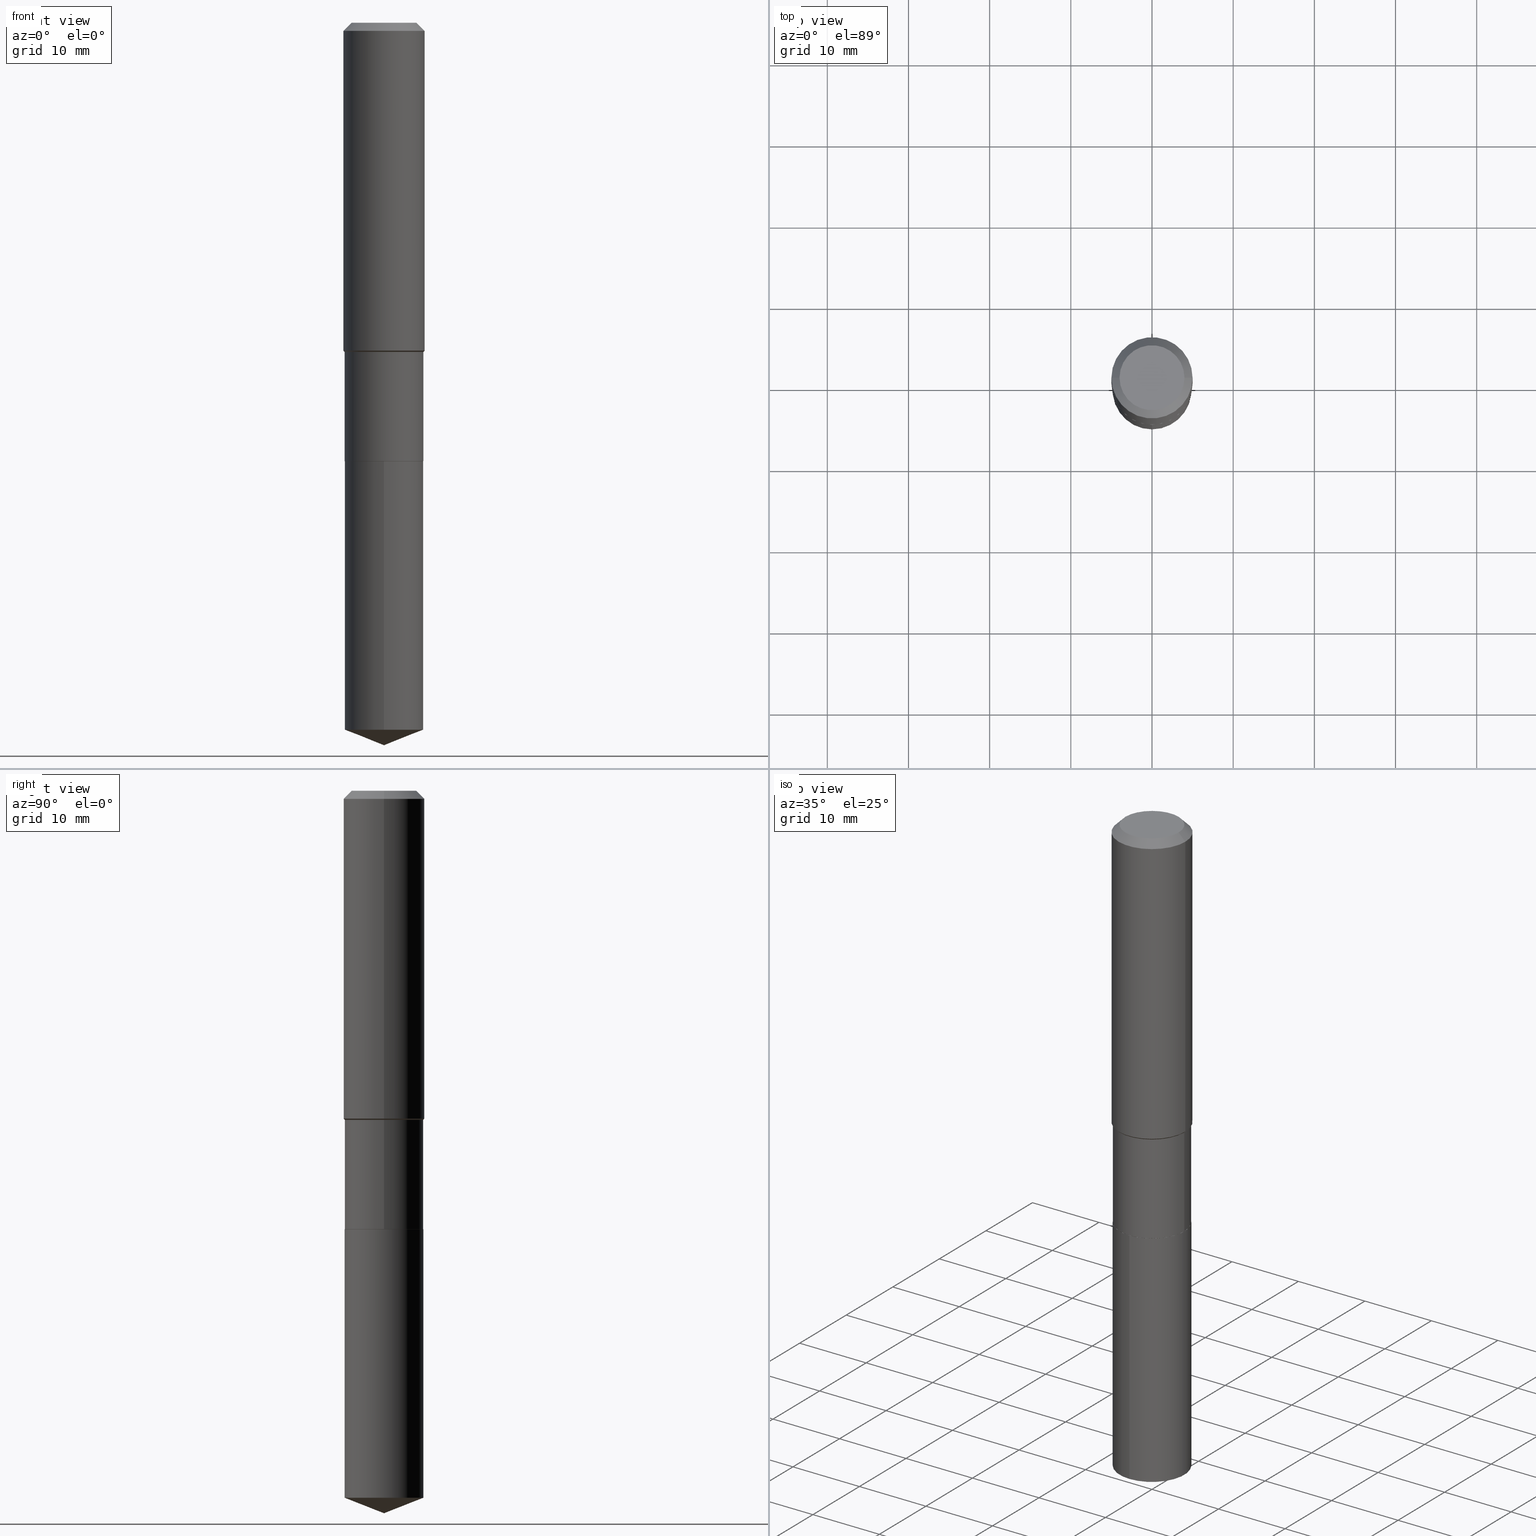
[diagram: canonical four-view strip — front | top / right | iso, engineering-drawing reading convention]
A machine part, canonical four-view strip (front | top / right | iso — engineering-drawing reading convention). The complete STEP part file that produces these views, byte-faithful:
ISO-10303-21;
HEADER;
FILE_DESCRIPTION (( 'STEP AP203' ),
    '1' );
FILE_NAME ('66467.STEP',
    '2024-04-24T23:15:52',
    ( '' ),
    ( '' ),
    'SwSTEP 2.0',
    'SolidWorks 2023',
    '' );
FILE_SCHEMA (( 'CONFIG_CONTROL_DESIGN' ));
ENDSEC;

DATA;
#1 = AXIS2_PLACEMENT_3D ( 'NONE', #81, #314, #273 ) ;
#2 = ORIENTED_EDGE ( 'NONE', *, *, #295, .F. ) ;
#3 = FACE_OUTER_BOUND ( 'NONE', #332, .T. ) ;
#4 = EDGE_LOOP ( 'NONE', ( #296, #416, #15, #450 ) ) ;
#5 = CARTESIAN_POINT ( 'NONE',  ( 3.903457308432714385E-29, -5.573102513061428085E-15, -1.596199999999999841 ) ) ;
#6 = DIRECTION ( 'NONE',  ( 1.000000000000000000, -6.982962677686271444E-15, 0.000000000000000000 ) ) ;
#7 = EDGE_CURVE ( 'NONE', #63, #50, #23, .T. ) ;
#8 = AXIS2_PLACEMENT_3D ( 'NONE', #108, #457, #22 ) ;
#9 = CARTESIAN_POINT ( 'NONE',  ( -1.333396723304140679E-15, -0.1909500000000074194, -2.125899999999999235 ) ) ;
#10 = COORDINATED_UNIVERSAL_TIME_OFFSET ( 5, 0, .BEHIND. ) ;
#11 = CC_DESIGN_PERSON_AND_ORGANIZATION_ASSIGNMENT ( #124, #34, ( #434 ) ) ;
#12 = CARTESIAN_POINT ( 'NONE',  ( 8.568579986907819706E-29, -1.223394203829628348E-14, -3.503899999999999793 ) ) ;
#13 = AXIS2_PLACEMENT_3D ( 'NONE', #233, #121, #386 ) ;
#14 = AXIS2_PLACEMENT_3D ( 'NONE', #164, #191, #358 ) ;
#15 = ORIENTED_EDGE ( 'NONE', *, *, #7, .T. ) ;
#16 = DIRECTION ( 'NONE',  ( 1.000000000000000000, -6.982962677686266711E-15, 0.000000000000000000 ) ) ;
#17 = APPROVAL_ROLE ( '' ) ;
#18 = CARTESIAN_POINT ( 'NONE',  ( 3.903457308432714385E-29, -5.573102513061428085E-15, -1.596199999999999841 ) ) ;
#19 = DIRECTION ( 'NONE',  ( -2.445468806185136597E-29, 3.491481338843145583E-15, 1.000000000000000000 ) ) ;
#20 = ADVANCED_FACE ( 'NONE', ( #3 ), #446, .T. ) ;
#21 = EDGE_CURVE ( 'NONE', #269, #213, #487, .T. ) ;
#22 = DIRECTION ( 'NONE',  ( 1.000000000000000000, -6.982962677686265922E-15, 0.000000000000000000 ) ) ;
#23 = CIRCLE ( 'NONE', #95, 0.1968500000000000250 ) ;
#24 = CIRCLE ( 'NONE', #302, 0.1909499999999999531 ) ;
#25 = CC_DESIGN_APPROVAL ( #376, ( #287 ) ) ;
#26 = CYLINDRICAL_SURFACE ( 'NONE', #51, 0.1909499999999999809 ) ;
#27 = APPROVAL_ROLE ( '' ) ;
#28 = DIRECTION ( 'NONE',  ( -6.982962677686265922E-15, -1.000000000000000000, 2.861322852751257324E-15 ) ) ;
#29 = ORIENTED_EDGE ( 'NONE', *, *, #7, .F. ) ;
#30 = ADVANCED_FACE ( 'NONE', ( #240 ), #389, .T. ) ;
#31 = CLOSED_SHELL ( 'NONE', ( #168, #377, #306, #486, #320 ) ) ;
#32 = CIRCLE ( 'NONE', #462, 0.1909500000000000086 ) ;
#33 = LOCAL_TIME ( 19, 15, 52.00000000000000000, #387 ) ;
#34 = PERSON_AND_ORGANIZATION_ROLE ( 'creator' ) ;
#35 = CARTESIAN_POINT ( 'NONE',  ( 1.356781353933995380E-15, 0.1909499999999925979, -2.125900000000000567 ) ) ;
#36 = VERTEX_POINT ( 'NONE', #163 ) ;
#37 = EDGE_LOOP ( 'NONE', ( #219, #405 ) ) ;
#38 = ORIENTED_EDGE ( 'NONE', *, *, #123, .T. ) ;
#39 = CIRCLE ( 'NONE', #215, 0.1909500000000000086 ) ;
#40 = DIRECTION ( 'NONE',  ( 1.000000000000000000, -6.982962677686265922E-15, 4.876223630392693006E-29 ) ) ;
#41 = AXIS2_PLACEMENT_3D ( 'NONE', #485, #155, #310 ) ;
#42 = CARTESIAN_POINT ( 'NONE',  ( 5.197599400665889285E-29, -7.420794437577220826E-15, -2.125399999999999956 ) ) ;
#43 = ORIENTED_EDGE ( 'NONE', *, *, #205, .T. ) ;
#44 = ORIENTED_EDGE ( 'NONE', *, *, #71, .T. ) ;
#45 = EDGE_CURVE ( 'NONE', #465, #110, #430, .T. ) ;
#46 = CARTESIAN_POINT ( 'NONE',  ( 5.198822135068982087E-29, -7.422540178246643119E-15, -2.125899999999999679 ) ) ;
#47 = EDGE_LOOP ( 'NONE', ( #441, #444, #278, #288 ) ) ;
#48 = ADVANCED_FACE ( 'NONE', ( #247 ), #395, .T. ) ;
#49 = PERSON_AND_ORGANIZATION ( #82, #338 ) ;
#50 = VERTEX_POINT ( 'NONE', #365 ) ;
#51 = AXIS2_PLACEMENT_3D ( 'NONE', #299, #343, #448 ) ;
#52 =( GEOMETRIC_REPRESENTATION_CONTEXT ( 3 ) GLOBAL_UNCERTAINTY_ASSIGNED_CONTEXT ( ( #195 ) ) GLOBAL_UNIT_ASSIGNED_CONTEXT ( ( #194, #85, #158 ) ) REPRESENTATION_CONTEXT ( 'NONE', 'WORKASPACE' ) );
#53 = DIRECTION ( 'NONE',  ( -2.445468806185136597E-29, 3.491481338843145583E-15, 1.000000000000000000 ) ) ;
#54 = CARTESIAN_POINT ( 'NONE',  ( 0.1968500000000000250, -1.487948651171581601E-15, -0.03937000000000029365 ) ) ;
#55 = ORIENTED_EDGE ( 'NONE', *, *, #161, .T. ) ;
#56 = EDGE_LOOP ( 'NONE', ( #86, #403, #222, #2 ) ) ;
#57 = EDGE_CURVE ( 'NONE', #103, #63, #254, .T. ) ;
#58 = CARTESIAN_POINT ( 'NONE',  ( 0.1968500000000000250, -1.512055823412797189E-15, -0.03937000000000029365 ) ) ;
#59 = CALENDAR_DATE ( 2024, 24, 4 ) ;
#60 = VERTEX_POINT ( 'NONE', #173 ) ;
#61 = CIRCLE ( 'NONE', #116, 0.1909499999999999531 ) ;
#62 = AXIS2_PLACEMENT_3D ( 'NONE', #315, #120, #272 ) ;
#63 = VERTEX_POINT ( 'NONE', #58 ) ;
#64 = CARTESIAN_POINT ( 'NONE',  ( 0.1968500000000001082, -1.374596203102542397E-15, 9.598753983154305062E-30 ) ) ;
#65 = ADVANCED_FACE ( 'NONE', ( #331 ), #325, .T. ) ;
#66 = ORIENTED_EDGE ( 'NONE', *, *, #57, .T. ) ;
#67 = DIRECTION ( 'NONE',  ( -2.445600057802036841E-29, 3.491293379057366203E-15, 1.000000000000000000 ) ) ;
#68 = LINE ( 'NONE', #340, #419 ) ;
#69 = VECTOR ( 'NONE', #249, 39.37007874015748143 ) ;
#70 = ORIENTED_EDGE ( 'NONE', *, *, #301, .T. ) ;
#71 = EDGE_CURVE ( 'NONE', #119, #218, #263, .T. ) ;
#72 = SHAPE_DEFINITION_REPRESENTATION ( #298, #210 ) ;
#73 = DIRECTION ( 'NONE',  ( -0.7071067811866199593, 7.493145998870616062E-15, 0.7071067811864750752 ) ) ;
#74 = DATE_AND_TIME ( #184, #97 ) ;
#75 = EDGE_LOOP ( 'NONE', ( #426, #415, #99 ) ) ;
#76 = DIRECTION ( 'NONE',  ( -2.438088387897960049E-29, 3.491481338843145188E-15, 1.000000000000000000 ) ) ;
#77 = DIRECTION ( 'NONE',  ( 0.7071067811865450192, -7.319954787623246579E-15, -0.7071067811865500152 ) ) ;
#78 = AXIS2_PLACEMENT_3D ( 'NONE', #388, #275, #354 ) ;
#79 = ADVANCED_FACE ( 'NONE', ( #289 ), #443, .T. ) ;
#80 = DIRECTION ( 'NONE',  ( -2.445468806185136597E-29, 3.491481338843145583E-15, 1.000000000000000000 ) ) ;
#81 = CARTESIAN_POINT ( 'NONE',  ( 5.197599400665889285E-29, -7.420794437577220826E-15, -2.125399999999999956 ) ) ;
#82 = PERSON ( 'UNSPECIFIED', 'UNSPECIFIED', 'UNSPECIFIED', ('UNSPECIFIED'), ('UNSPECIFIED'), ('UNSPECIFIED') ) ;
#83 = DIRECTION ( 'NONE',  ( -2.445468806185136597E-29, 3.491481338843145583E-15, 1.000000000000000000 ) ) ;
#84 = FACE_OUTER_BOUND ( 'NONE', #156, .T. ) ;
#85 =( NAMED_UNIT ( * ) PLANE_ANGLE_UNIT ( ) SI_UNIT ( $, .RADIAN. ) );
#86 = ORIENTED_EDGE ( 'NONE', *, *, #246, .T. ) ;
#87 = ORIENTED_EDGE ( 'NONE', *, *, #161, .F. ) ;
#88 = CIRCLE ( 'NONE', #216, 0.1574800000000000089 ) ;
#89 = CARTESIAN_POINT ( 'NONE',  ( 8.384907813045136021E-29, -1.197093712366741292E-14, -3.428682794681327639 ) ) ;
#90 = PERSON_AND_ORGANIZATION ( #82, #338 ) ;
#91 = CC_DESIGN_PERSON_AND_ORGANIZATION_ASSIGNMENT ( #49, #204, ( #287 ) ) ;
#92 = DIRECTION ( 'NONE',  ( -0.7071067811865434649, 7.493145998870339961E-15, 0.7071067811865516806 ) ) ;
#93 = COORDINATED_UNIVERSAL_TIME_OFFSET ( 5, 0, .BEHIND. ) ;
#94 = ORIENTED_EDGE ( 'NONE', *, *, #238, .F. ) ;
#95 = AXIS2_PLACEMENT_3D ( 'NONE', #271, #243, #281 ) ;
#96 = LINE ( 'NONE', #172, #372 ) ;
#97 = LOCAL_TIME ( 19, 15, 52.00000000000000000, #303 ) ;
#98 = FACE_OUTER_BOUND ( 'NONE', #4, .T. ) ;
#99 = ORIENTED_EDGE ( 'NONE', *, *, #234, .F. ) ;
#100 = DIRECTION ( 'NONE',  ( -6.982962677686266711E-15, -1.000000000000000000, 3.498627837349992784E-15 ) ) ;
#101 = EDGE_LOOP ( 'NONE', ( #70, #193, #29, #384 ) ) ;
#102 = CIRCLE ( 'NONE', #353, 0.1904500000000000082 ) ;
#103 = VERTEX_POINT ( 'NONE', #398 ) ;
#104 = LINE ( 'NONE', #407, #383 ) ;
#105 = CARTESIAN_POINT ( 'NONE',  ( -9.427742298522567634E-47, 1.346031739168368355E-32, 3.855188123715870730E-18 ) ) ;
#106 = DIRECTION ( 'NONE',  ( 1.000000000000000000, -6.982962677686265922E-15, 4.876176775795935793E-29 ) ) ;
#107 = CIRCLE ( 'NONE', #8, 0.1968500000000000250 ) ;
#108 = CARTESIAN_POINT ( 'NONE',  ( 9.627810689950954155E-31, -1.374596203102556547E-16, -0.03937000000000029365 ) ) ;
#109 = ORIENTED_EDGE ( 'NONE', *, *, #217, .T. ) ;
#110 = VERTEX_POINT ( 'NONE', #438 ) ;
#111 = DIRECTION ( 'NONE',  ( -6.982962677686265922E-15, -1.000000000000000000, 2.861322852751257324E-15 ) ) ;
#112 = DIRECTION ( 'NONE',  ( -2.445468806185136597E-29, 3.491481338843145583E-15, 1.000000000000000000 ) ) ;
#113 = APPROVAL ( #420, 'UNSPECIFIED' ) ;
#114 = DIRECTION ( 'NONE',  ( -2.445468806185136597E-29, 3.491481338843145583E-15, 1.000000000000000000 ) ) ;
#115 = COORDINATED_UNIVERSAL_TIME_OFFSET ( 5, 0, .BEHIND. ) ;
#116 = AXIS2_PLACEMENT_3D ( 'NONE', #480, #151, #454 ) ;
#117 = CC_DESIGN_APPROVAL ( #113, ( #434 ) ) ;
#118 = CC_DESIGN_DATE_AND_TIME_ASSIGNMENT ( #255, #212, ( #434 ) ) ;
#119 = VERTEX_POINT ( 'NONE', #126 ) ;
#120 = DIRECTION ( 'NONE',  ( 2.438088387897960049E-29, -3.491481338843145188E-15, -1.000000000000000000 ) ) ;
#121 = DIRECTION ( 'NONE',  ( -2.445600057802036841E-29, 3.491293379057366203E-15, 1.000000000000000000 ) ) ;
#122 = MECHANICAL_CONTEXT ( 'NONE', #328, 'mechanical' ) ;
#123 = EDGE_CURVE ( 'NONE', #440, #269, #102, .T. ) ;
#124 = PERSON_AND_ORGANIZATION ( #82, #338 ) ;
#125 = ORIENTED_EDGE ( 'NONE', *, *, #214, .F. ) ;
#126 = CARTESIAN_POINT ( 'NONE',  ( -1.333396723304108730E-15, -0.1909500000000120268, -3.428682794681327195 ) ) ;
#127 = ORIENTED_EDGE ( 'NONE', *, *, #21, .F. ) ;
#128 = DIRECTION ( 'NONE',  ( 2.445468806185136597E-29, -3.491481338843145583E-15, -1.000000000000000000 ) ) ;
#129 = DIRECTION ( 'NONE',  ( 2.445468806185136597E-29, -3.491481338843145583E-15, -1.000000000000000000 ) ) ;
#130 = AXIS2_PLACEMENT_3D ( 'NONE', #344, #140, #334 ) ;
#131 = DIRECTION ( 'NONE',  ( -2.445468806185136597E-29, 3.491481338843145583E-15, 1.000000000000000000 ) ) ;
#132 = ORIENTED_EDGE ( 'NONE', *, *, #418, .T. ) ;
#133 = DIRECTION ( 'NONE',  ( 1.000000000000000000, -6.982962677686266711E-15, 4.876176775795935232E-29 ) ) ;
#134 = EDGE_LOOP ( 'NONE', ( #455, #352, #132, #136 ) ) ;
#135 = EDGE_CURVE ( 'NONE', #110, #50, #381, .T. ) ;
#136 = ORIENTED_EDGE ( 'NONE', *, *, #205, .F. ) ;
#137 = ORIENTED_EDGE ( 'NONE', *, *, #295, .T. ) ;
#138 = ADVANCED_FACE ( 'NONE', ( #297 ), #26, .T. ) ;
#139 = VERTEX_POINT ( 'NONE', #413 ) ;
#140 = DIRECTION ( 'NONE',  ( -2.445600057802036841E-29, 3.491293379057366203E-15, 1.000000000000000000 ) ) ;
#141 = CIRCLE ( 'NONE', #476, 0.1909500000000000086 ) ;
#142 = ORIENTED_EDGE ( 'NONE', *, *, #410, .T. ) ;
#143 = CARTESIAN_POINT ( 'NONE',  ( -0.1909499999999999531, -5.140167121385413090E-15, -1.596199999999999841 ) ) ;
#144 = ADVANCED_FACE ( 'NONE', ( #186 ), #230, .T. ) ;
#145 = MANIFOLD_SOLID_BREP ( 'Body-Move/Copy2[1]', #31 ) ;
#146 = DIRECTION ( 'NONE',  ( -2.445468806185136877E-29, 3.491481338843145188E-15, 1.000000000000000000 ) ) ;
#147 = APPROVAL_STATUS ( 'not_yet_approved' ) ;
#148 = PLANE ( 'NONE',  #400 ) ;
#149 = VECTOR ( 'NONE', #371, 39.37007874015748143 ) ;
#150 = ORIENTED_EDGE ( 'NONE', *, *, #333, .F. ) ;
#151 = DIRECTION ( 'NONE',  ( -2.445468806185136597E-29, 3.491481338843145583E-15, 1.000000000000000000 ) ) ;
#152 = MANIFOLD_SOLID_BREP ( 'Body-Move/Copy2[2]', #382 ) ;
#153 = DIRECTION ( 'NONE',  ( 1.000000000000000000, -6.982962677686265133E-15, 0.000000000000000000 ) ) ;
#154 = LENGTH_MEASURE_WITH_UNIT ( LENGTH_MEASURE( 0.02539999999999999897 ), #464 );
#155 = DIRECTION ( 'NONE',  ( 2.445600057802036561E-29, -3.491293379057366203E-15, -1.000000000000000000 ) ) ;
#156 = EDGE_LOOP ( 'NONE', ( #150, #109, #44, #94 ) ) ;
#157 = ORIENTED_EDGE ( 'NONE', *, *, #21, .T. ) ;
#158 =( NAMED_UNIT ( * ) SI_UNIT ( $, .STERADIAN. ) SOLID_ANGLE_UNIT ( ) );
#159 = VERTEX_POINT ( 'NONE', #185 ) ;
#160 = DIRECTION ( 'NONE',  ( 1.000000000000000000, -6.982962677686271444E-15, 0.000000000000000000 ) ) ;
#161 = EDGE_CURVE ( 'NONE', #440, #36, #104, .T. ) ;
#162 = APPLICATION_PROTOCOL_DEFINITION ( 'international standard', 'config_control_design', 1994, #328 ) ;
#163 = CARTESIAN_POINT ( 'NONE',  ( -0.1909500000000000086, -5.140167121385412301E-15, -2.125399999999999956 ) ) ;
#164 = CARTESIAN_POINT ( 'NONE',  ( 0.000000000000000000, 0.000000000000000000, 0.000000000000000000 ) ) ;
#165 = AXIS2_PLACEMENT_3D ( 'NONE', #89, #309, #229 ) ;
#166 = AXIS2_PLACEMENT_3D ( 'NONE', #176, #19, #439 ) ;
#167 = CALENDAR_DATE ( 2024, 24, 4 ) ;
#168 = ADVANCED_FACE ( 'NONE', ( #220 ), #221, .T. ) ;
#169 = SECURITY_CLASSIFICATION_LEVEL ( 'unclassified' ) ;
#170 = VERTEX_POINT ( 'NONE', #370 ) ;
#171 = PRODUCT ( '66467', '66467', '', ( #122 ) ) ;
#172 = CARTESIAN_POINT ( 'NONE',  ( 0.1909499999999999531, -6.906499236365620631E-15, -1.596199999999999841 ) ) ;
#173 = CARTESIAN_POINT ( 'NONE',  ( 1.356781353933995577E-15, 0.1909499999999880737, -3.428682794681328083 ) ) ;
#174 = PERSON_AND_ORGANIZATION ( #82, #338 ) ;
#175 = AXIS2_PLACEMENT_3D ( 'NONE', #431, #128, #323 ) ;
#176 = CARTESIAN_POINT ( 'NONE',  ( 5.198822135068982087E-29, -7.422540178246643119E-15, -2.125899999999999679 ) ) ;
#177 = EDGE_LOOP ( 'NONE', ( #355, #435 ) ) ;
#178 = EDGE_LOOP ( 'NONE', ( #87, #38, #157, #437 ) ) ;
#179 = CARTESIAN_POINT ( 'NONE',  ( 8.569142936021653677E-29, -1.223314287087910590E-14, -3.503899999999999793 ) ) ;
#180 = CIRCLE ( 'NONE', #1, 0.1909500000000000086 ) ;
#181 = CARTESIAN_POINT ( 'NONE',  ( 0.1909499999999999809, -1.333396723304192546E-15, 9.311059553382337160E-30 ) ) ;
#182 = SECURITY_CLASSIFICATION ( '', '', #169 ) ;
#183 = CARTESIAN_POINT ( 'NONE',  ( -0.1904500000000000082, -6.066662310817420267E-15, -2.125899999999999679 ) ) ;
#184 = CALENDAR_DATE ( 2024, 24, 4 ) ;
#185 = CARTESIAN_POINT ( 'NONE',  ( 0.1574800000000000089, -1.284169937930321189E-15, 3.855188123724205385E-18 ) ) ;
#186 = FACE_OUTER_BOUND ( 'NONE', #490, .T. ) ;
#187 = AXIS2_PLACEMENT_3D ( 'NONE', #369, #292, #445 ) ;
#188 = CC_DESIGN_SECURITY_CLASSIFICATION ( #182, ( #287 ) ) ;
#189 = DIRECTION ( 'NONE',  ( -2.445468806185136597E-29, 3.491481338843145583E-15, 1.000000000000000000 ) ) ;
#190 = DIRECTION ( 'NONE',  ( -2.445600057802036841E-29, 3.491293379057366203E-15, 1.000000000000000000 ) ) ;
#191 = DIRECTION ( 'NONE',  ( 0.000000000000000000, 0.000000000000000000, 1.000000000000000000 ) ) ;
#192 = PLANE ( 'NONE',  #41 ) ;
#193 = ORIENTED_EDGE ( 'NONE', *, *, #135, .T. ) ;
#194 =( CONVERSION_BASED_UNIT ( 'INCH', #154 ) LENGTH_UNIT ( ) NAMED_UNIT ( #421 ) );
#195 = UNCERTAINTY_MEASURE_WITH_UNIT (LENGTH_MEASURE( 1.000000000000000082E-05 ), #194, 'distance_accuracy_value', 'NONE');
#196 = EDGE_CURVE ( 'NONE', #218, #316, #141, .T. ) ;
#197 = CIRCLE ( 'NONE', #165, 0.1909500000000000086 ) ;
#198 = CONICAL_SURFACE ( 'NONE', #363, 0.1968500000000000250, 0.7853981633974447263 ) ;
#199 = LINE ( 'NONE', #451, #208 ) ;
#200 = EDGE_LOOP ( 'NONE', ( #336, #201, #66, #380 ) ) ;
#201 = ORIENTED_EDGE ( 'NONE', *, *, #350, .T. ) ;
#202 = ORIENTED_EDGE ( 'NONE', *, *, #333, .T. ) ;
#203 = DIRECTION ( 'NONE',  ( -2.445468806185136597E-29, 3.491481338843145583E-15, 1.000000000000000000 ) ) ;
#204 = PERSON_AND_ORGANIZATION_ROLE ( 'creator' ) ;
#205 = EDGE_CURVE ( 'NONE', #465, #170, #61, .T. ) ;
#206 = ADVANCED_FACE ( 'NONE', ( #339 ), #148, .F. ) ;
#207 = AXIS2_PLACEMENT_3D ( 'NONE', #46, #359, #6 ) ;
#208 = VECTOR ( 'NONE', #322, 39.37007874015748143 ) ;
#209 = APPROVAL_DATE_TIME ( #396, #376 ) ;
#210 = ADVANCED_BREP_SHAPE_REPRESENTATION ( '66467', ( #145, #152, #14 ), #52 ) ;
#211 = FACE_OUTER_BOUND ( 'NONE', #75, .T. ) ;
#212 = DATE_TIME_ROLE ( 'creation_date' ) ;
#213 = VERTEX_POINT ( 'NONE', #226 ) ;
#214 = EDGE_CURVE ( 'NONE', #245, #60, #308, .T. ) ;
#215 = AXIS2_PLACEMENT_3D ( 'NONE', #42, #425, #153 ) ;
#216 = AXIS2_PLACEMENT_3D ( 'NONE', #461, #270, #40 ) ;
#217 = EDGE_CURVE ( 'NONE', #60, #119, #467, .T. ) ;
#218 = VERTEX_POINT ( 'NONE', #479 ) ;
#219 = ORIENTED_EDGE ( 'NONE', *, *, #196, .T. ) ;
#220 = FACE_OUTER_BOUND ( 'NONE', #342, .T. ) ;
#221 = CYLINDRICAL_SURFACE ( 'NONE', #130, 0.1909500000000000086 ) ;
#222 = ORIENTED_EDGE ( 'NONE', *, *, #301, .F. ) ;
#223 = CARTESIAN_POINT ( 'NONE',  ( -0.1968500000000001082, 1.398703375343757985E-15, -9.682923725166787881E-30 ) ) ;
#224 = DIRECTION ( 'NONE',  ( -2.445468806185136877E-29, 3.491481338843145188E-15, 1.000000000000000000 ) ) ;
#225 = ORIENTED_EDGE ( 'NONE', *, *, #234, .T. ) ;
#226 = CARTESIAN_POINT ( 'NONE',  ( 0.1909500000000000086, -8.754191160881413373E-15, -2.125399999999999956 ) ) ;
#227 = DIRECTION ( 'NONE',  ( 1.000000000000000000, -6.982962677686265922E-15, 4.876223630392693006E-29 ) ) ;
#228 = EDGE_CURVE ( 'NONE', #36, #213, #180, .T. ) ;
#229 = DIRECTION ( 'NONE',  ( -6.982962677686265922E-15, -1.000000000000000000, 2.861322852751257324E-15 ) ) ;
#230 = CONICAL_SURFACE ( 'NONE', #337, 0.1909499999999999531, 0.7853981633974425058 ) ;
#231 = EDGE_CURVE ( 'NONE', #213, #36, #39, .T. ) ;
#232 = VECTOR ( 'NONE', #250, 39.37007874015748143 ) ;
#233 = CARTESIAN_POINT ( 'NONE',  ( -8.771460782787969861E-28, 1.252189527838912910E-13, 35.86617874015747987 ) ) ;
#234 = EDGE_CURVE ( 'NONE', #119, #60, #197, .T. ) ;
#235 = ORIENTED_EDGE ( 'NONE', *, *, #442, .T. ) ;
#236 = CC_DESIGN_DATE_AND_TIME_ASSIGNMENT ( #264, #378, ( #182 ) ) ;
#237 = DIRECTION ( 'NONE',  ( 1.000000000000000000, -6.982962677686265922E-15, 0.000000000000000000 ) ) ;
#238 = EDGE_CURVE ( 'NONE', #316, #218, #32, .T. ) ;
#239 = DIRECTION ( 'NONE',  ( -6.982962677686265922E-15, -1.000000000000000000, 2.861322852751257324E-15 ) ) ;
#240 = FACE_OUTER_BOUND ( 'NONE', #178, .T. ) ;
#241 = AXIS2_PLACEMENT_3D ( 'NONE', #5, #114, #16 ) ;
#242 = APPLICATION_CONTEXT ( 'configuration controlled 3d designs of mechanical parts and assemblies' ) ;
#243 = DIRECTION ( 'NONE',  ( -2.445468806185136597E-29, 3.491481338843145583E-15, 1.000000000000000000 ) ) ;
#244 = APPROVAL_ROLE ( '' ) ;
#245 = VERTEX_POINT ( 'NONE', #356 ) ;
#246 = EDGE_CURVE ( 'NONE', #170, #465, #24, .T. ) ;
#247 = FACE_OUTER_BOUND ( 'NONE', #101, .T. ) ;
#248 = CALENDAR_DATE ( 2024, 24, 4 ) ;
#249 = DIRECTION ( 'NONE',  ( -2.445600057802036841E-29, 3.491293379057366203E-15, 1.000000000000000000 ) ) ;
#250 = DIRECTION ( 'NONE',  ( -6.497071151882122203E-15, -0.9304175679820250178, 0.3665012267242960253 ) ) ;
#251 = APPROVAL_STATUS ( 'not_yet_approved' ) ;
#252 = VECTOR ( 'NONE', #482, 39.37007874015748854 ) ;
#253 = APPROVAL_PERSON_ORGANIZATION ( #268, #427, #27 ) ;
#254 = LINE ( 'NONE', #64, #404 ) ;
#255 = DATE_AND_TIME ( #59, #468 ) ;
#256 = CYLINDRICAL_SURFACE ( 'NONE', #78, 0.1909500000000000086 ) ;
#257 = ORIENTED_EDGE ( 'NONE', *, *, #45, .F. ) ;
#258 = ADVANCED_FACE ( 'NONE', ( #483 ), #436, .T. ) ;
#259 = DIRECTION ( 'NONE',  ( -2.445468806185136877E-29, 3.491481338843145188E-15, 1.000000000000000000 ) ) ;
#260 = LINE ( 'NONE', #12, #232 ) ;
#261 = VECTOR ( 'NONE', #460, 39.37007874015748143 ) ;
#262 = CIRCLE ( 'NONE', #345, 0.1968500000000002192 ) ;
#263 = LINE ( 'NONE', #9, #69 ) ;
#264 = DATE_AND_TIME ( #167, #463 ) ;
#265 = DIRECTION ( 'NONE',  ( 1.000000000000000000, -6.982962677686266711E-15, 0.000000000000000000 ) ) ;
#266 = CC_DESIGN_PERSON_AND_ORGANIZATION_ASSIGNMENT ( #174, #362, ( #287 ) ) ;
#267 = VECTOR ( 'NONE', #92, 39.37007874015748143 ) ;
#268 = PERSON_AND_ORGANIZATION ( #82, #338 ) ;
#269 = VERTEX_POINT ( 'NONE', #321 ) ;
#270 = DIRECTION ( 'NONE',  ( -2.445468806185136597E-29, 3.491481338843145583E-15, 1.000000000000000000 ) ) ;
#271 = CARTESIAN_POINT ( 'NONE',  ( 9.627810689950954155E-31, -1.374596203102556547E-16, -0.03937000000000029365 ) ) ;
#272 = DIRECTION ( 'NONE',  ( -1.000000000000000000, 6.982962677686265922E-15, -4.876176775795935793E-29 ) ) ;
#273 = DIRECTION ( 'NONE',  ( 1.000000000000000000, -6.982962677686265133E-15, 0.000000000000000000 ) ) ;
#274 = PRODUCT_RELATED_PRODUCT_CATEGORY ( 'detail', '', ( #171 ) ) ;
#275 = DIRECTION ( 'NONE',  ( -2.445600057802036841E-29, 3.491293379057366203E-15, 1.000000000000000000 ) ) ;
#276 = ORIENTED_EDGE ( 'NONE', *, *, #392, .F. ) ;
#277 = DIRECTION ( 'NONE',  ( -1.000000000000000000, 6.982962677686265922E-15, 0.000000000000000000 ) ) ;
#278 = ORIENTED_EDGE ( 'NONE', *, *, #246, .F. ) ;
#279 = FACE_OUTER_BOUND ( 'NONE', #37, .T. ) ;
#280 = CARTESIAN_POINT ( 'NONE',  ( 5.198822135068982087E-29, -7.422540178246643119E-15, -2.125899999999999679 ) ) ;
#281 = DIRECTION ( 'NONE',  ( 1.000000000000000000, -6.982962677686265922E-15, 0.000000000000000000 ) ) ;
#282 = VECTOR ( 'NONE', #146, 39.37007874015748143 ) ;
#283 = ORIENTED_EDGE ( 'NONE', *, *, #71, .F. ) ;
#284 = DIRECTION ( 'NONE',  ( -2.445468806185136597E-29, 3.491481338843145583E-15, 1.000000000000000000 ) ) ;
#285 = ORIENTED_EDGE ( 'NONE', *, *, #217, .F. ) ;
#286 = CONICAL_SURFACE ( 'NONE', #175, 0.1968500000000000250, 0.7853981633974447263 ) ;
#287 = PRODUCT_DEFINITION_FORMATION_WITH_SPECIFIED_SOURCE ( 'ANY', '', #171, .NOT_KNOWN. ) ;
#288 = ORIENTED_EDGE ( 'NONE', *, *, #418, .F. ) ;
#289 = FACE_OUTER_BOUND ( 'NONE', #200, .T. ) ;
#290 = DIRECTION ( 'NONE',  ( -2.445600057802036841E-29, 3.491293379057366203E-15, 1.000000000000000000 ) ) ;
#291 = ORIENTED_EDGE ( 'NONE', *, *, #406, .T. ) ;
#292 = DIRECTION ( 'NONE',  ( -2.445468806185136597E-29, 3.491481338843145583E-15, 1.000000000000000000 ) ) ;
#293 = AXIS2_PLACEMENT_3D ( 'NONE', #357, #83, #160 ) ;
#294 = ADVANCED_FACE ( 'NONE', ( #98 ), #286, .T. ) ;
#295 = EDGE_CURVE ( 'NONE', #170, #103, #96, .T. ) ;
#296 = ORIENTED_EDGE ( 'NONE', *, *, #410, .F. ) ;
#297 = FACE_OUTER_BOUND ( 'NONE', #134, .T. ) ;
#298 = PRODUCT_DEFINITION_SHAPE ( 'NONE', 'NONE',  #434 ) ;
#299 = CARTESIAN_POINT ( 'NONE',  ( 0.000000000000000000, 0.000000000000000000, 0.000000000000000000 ) ) ;
#300 = CARTESIAN_POINT ( 'NONE',  ( -0.1909499999999999809, 1.356781353933911169E-15, -9.392706554841740811E-30 ) ) ;
#301 = EDGE_CURVE ( 'NONE', #103, #110, #411, .T. ) ;
#302 = AXIS2_PLACEMENT_3D ( 'NONE', #466, #203, #347 ) ;
#303 = COORDINATED_UNIVERSAL_TIME_OFFSET ( 5, 0, .BEHIND. ) ;
#304 = CARTESIAN_POINT ( 'NONE',  ( 5.198822135068982087E-29, -7.422540178246643119E-15, -2.125899999999999679 ) ) ;
#305 = CARTESIAN_POINT ( 'NONE',  ( 9.627810689950954155E-31, -1.374596203102556547E-16, -0.03937000000000029365 ) ) ;
#306 = ADVANCED_FACE ( 'NONE', ( #346 ), #452, .T. ) ;
#307 = ORIENTED_EDGE ( 'NONE', *, *, #196, .F. ) ;
#308 = LINE ( 'NONE', #179, #252 ) ;
#309 = DIRECTION ( 'NONE',  ( -2.445600057802036841E-29, 3.491293379057366203E-15, 1.000000000000000000 ) ) ;
#310 = DIRECTION ( 'NONE',  ( 6.982962677686265922E-15, 1.000000000000000000, -3.491293379057366203E-15 ) ) ;
#311 = AXIS2_PLACEMENT_3D ( 'NONE', #456, #67, #111 ) ;
#312 = CIRCLE ( 'NONE', #166, 0.1904500000000000082 ) ;
#313 = ORIENTED_EDGE ( 'NONE', *, *, #326, .T. ) ;
#314 = DIRECTION ( 'NONE',  ( -2.445468806185136597E-29, 3.491481338843145583E-15, 1.000000000000000000 ) ) ;
#315 = CARTESIAN_POINT ( 'NONE',  ( -4.713871149261283817E-47, 6.730158695841841775E-33, 1.927594061857935365E-18 ) ) ;
#316 = VERTEX_POINT ( 'NONE', #35 ) ;
#317 = CARTESIAN_POINT ( 'NONE',  ( -0.1909499999999999531, -4.216321159127517113E-15, -1.596199999999999841 ) ) ;
#318 = DATE_AND_TIME ( #394, #33 ) ;
#319 = APPROVAL_PERSON_ORGANIZATION ( #367, #376, #17 ) ;
#320 = ADVANCED_FACE ( 'NONE', ( #279 ), #192, .F. ) ;
#321 = CARTESIAN_POINT ( 'NONE',  ( 0.1904500000000000082, -8.752445420211992658E-15, -2.125899999999999679 ) ) ;
#322 = DIRECTION ( 'NONE',  ( -2.445600057802036841E-29, 3.491293379057366203E-15, 1.000000000000000000 ) ) ;
#323 = DIRECTION ( 'NONE',  ( -1.000000000000000000, 6.982962677686265922E-15, 0.000000000000000000 ) ) ;
#324 = DIRECTION ( 'NONE',  ( 0.7071067811865434649, -2.468850131082213673E-15, 0.7071067811865516806 ) ) ;
#325 = CYLINDRICAL_SURFACE ( 'NONE', #361, 0.1909499999999999809 ) ;
#326 = EDGE_CURVE ( 'NONE', #139, #159, #88, .T. ) ;
#327 = PERSON_AND_ORGANIZATION ( #82, #338 ) ;
#328 = APPLICATION_CONTEXT ( 'configuration controlled 3d designs of mechanical parts and assemblies' ) ;
#329 = APPROVAL_PERSON_ORGANIZATION ( #90, #113, #244 ) ;
#330 = AXIS2_PLACEMENT_3D ( 'NONE', #105, #112, #227 ) ;
#331 = FACE_OUTER_BOUND ( 'NONE', #47, .T. ) ;
#332 = EDGE_LOOP ( 'NONE', ( #391, #55, #423, #127 ) ) ;
#333 = EDGE_CURVE ( 'NONE', #60, #316, #199, .T. ) ;
#334 = DIRECTION ( 'NONE',  ( -6.982962677686265922E-15, -1.000000000000000000, 2.861322852751257324E-15 ) ) ;
#335 = EDGE_LOOP ( 'NONE', ( #276, #449, #235, #291 ) ) ;
#336 = ORIENTED_EDGE ( 'NONE', *, *, #135, .F. ) ;
#337 = AXIS2_PLACEMENT_3D ( 'NONE', #18, #375, #265 ) ;
#338 = ORGANIZATION ( 'UNSPECIFIED', 'UNSPECIFIED', '' ) ;
#339 = FACE_OUTER_BOUND ( 'NONE', #177, .T. ) ;
#340 = CARTESIAN_POINT ( 'NONE',  ( -0.1968500000000000250, 1.237136582792286225E-15, -0.03937000000000029365 ) ) ;
#341 = LINE ( 'NONE', #300, #412 ) ;
#342 = EDGE_LOOP ( 'NONE', ( #225, #202, #307, #283 ) ) ;
#343 = DIRECTION ( 'NONE',  ( -2.445468806185136597E-29, 3.491481338843145583E-15, 1.000000000000000000 ) ) ;
#344 = CARTESIAN_POINT ( 'NONE',  ( 5.198822135068982087E-29, -7.422540178246643119E-15, -2.125899999999999679 ) ) ;
#345 = AXIS2_PLACEMENT_3D ( 'NONE', #470, #284, #433 ) ;
#346 = FACE_OUTER_BOUND ( 'NONE', #402, .T. ) ;
#347 = DIRECTION ( 'NONE',  ( 1.000000000000000000, -6.982962677686266711E-15, 0.000000000000000000 ) ) ;
#348 = PERSON_AND_ORGANIZATION_ROLE ( 'design_owner' ) ;
#349 = CARTESIAN_POINT ( 'NONE',  ( 3.889029042476221794E-29, -5.552502773162252765E-15, -1.590299999999999381 ) ) ;
#350 = EDGE_CURVE ( 'NONE', #110, #103, #262, .T. ) ;
#351 = FACE_OUTER_BOUND ( 'NONE', #397, .T. ) ;
#352 = ORIENTED_EDGE ( 'NONE', *, *, #228, .T. ) ;
#353 = AXIS2_PLACEMENT_3D ( 'NONE', #432, #53, #417 ) ;
#354 = DIRECTION ( 'NONE',  ( -6.982962677686265922E-15, -1.000000000000000000, 2.861322852751257324E-15 ) ) ;
#355 = ORIENTED_EDGE ( 'NONE', *, *, #373, .F. ) ;
#356 = CARTESIAN_POINT ( 'NONE',  ( 8.569138042532557080E-29, -1.223314287087910590E-14, -3.503899999999999793 ) ) ;
#357 = CARTESIAN_POINT ( 'NONE',  ( 5.198822135068982087E-29, -7.422540178246643119E-15, -2.125899999999999679 ) ) ;
#358 = DIRECTION ( 'NONE',  ( 1.000000000000000000, 0.000000000000000000, 0.000000000000000000 ) ) ;
#359 = DIRECTION ( 'NONE',  ( -2.445468806185136597E-29, 3.491481338843145583E-15, 1.000000000000000000 ) ) ;
#360 = ADVANCED_FACE ( 'NONE', ( #351 ), #488, .F. ) ;
#361 = AXIS2_PLACEMENT_3D ( 'NONE', #474, #131, #133 ) ;
#362 = PERSON_AND_ORGANIZATION_ROLE ( 'design_supplier' ) ;
#363 = AXIS2_PLACEMENT_3D ( 'NONE', #305, #129, #277 ) ;
#364 = ORIENTED_EDGE ( 'NONE', *, *, #385, .T. ) ;
#365 = CARTESIAN_POINT ( 'NONE',  ( -0.1968500000000000250, -1.446277821392495794E-15, -0.03937000000000029365 ) ) ;
#366 = CARTESIAN_POINT ( 'NONE',  ( -8.771460782787969861E-28, 1.252189527838912910E-13, 35.86617874015747987 ) ) ;
#367 = PERSON_AND_ORGANIZATION ( #82, #338 ) ;
#368 = AXIS2_PLACEMENT_3D ( 'NONE', #422, #80, #484 ) ;
#369 = CARTESIAN_POINT ( 'NONE',  ( 0.000000000000000000, 0.000000000000000000, 0.000000000000000000 ) ) ;
#370 = CARTESIAN_POINT ( 'NONE',  ( 0.1909499999999999531, -6.906499236365620631E-15, -1.596199999999999841 ) ) ;
#371 = DIRECTION ( 'NONE',  ( -2.445468806185136877E-29, 3.491481338843145188E-15, 1.000000000000000000 ) ) ;
#372 = VECTOR ( 'NONE', #324, 39.37007874015748143 ) ;
#373 = EDGE_CURVE ( 'NONE', #269, #440, #312, .T. ) ;
#374 = CONICAL_SURFACE ( 'NONE', #447, 99.94676754584030220, 1.195550537616120623 ) ;
#375 = DIRECTION ( 'NONE',  ( -2.445468806185136597E-29, 3.491481338843145583E-15, 1.000000000000000000 ) ) ;
#376 = APPROVAL ( #251, 'UNSPECIFIED' ) ;
#377 = ADVANCED_FACE ( 'NONE', ( #211 ), #374, .T. ) ;
#378 = DATE_TIME_ROLE ( 'classification_date' ) ;
#379 = FACE_OUTER_BOUND ( 'NONE', #335, .T. ) ;
#380 = ORIENTED_EDGE ( 'NONE', *, *, #406, .F. ) ;
#381 = LINE ( 'NONE', #223, #282 ) ;
#382 = CLOSED_SHELL ( 'NONE', ( #20, #294, #48, #258, #65, #138, #144, #79, #478, #360, #206, #30 ) ) ;
#383 = VECTOR ( 'NONE', #73, 39.37007874015748143 ) ;
#384 = ORIENTED_EDGE ( 'NONE', *, *, #57, .F. ) ;
#385 = EDGE_CURVE ( 'NONE', #245, #119, #260, .T. ) ;
#386 = DIRECTION ( 'NONE',  ( -6.982962677686266711E-15, -1.000000000000000000, 3.498627837349992784E-15 ) ) ;
#387 = COORDINATED_UNIVERSAL_TIME_OFFSET ( 5, 0, .BEHIND. ) ;
#388 = CARTESIAN_POINT ( 'NONE',  ( 5.198822135068982087E-29, -7.422540178246643119E-15, -2.125899999999999679 ) ) ;
#389 = CONICAL_SURFACE ( 'NONE', #207, 0.1904500000000000082, 0.7853981633975507526 ) ;
#390 = CC_DESIGN_APPROVAL ( #427, ( #182 ) ) ;
#391 = ORIENTED_EDGE ( 'NONE', *, *, #373, .T. ) ;
#392 = EDGE_CURVE ( 'NONE', #159, #63, #399, .T. ) ;
#393 = CARTESIAN_POINT ( 'NONE',  ( 0.1904500000000000082, -8.752445420211992658E-15, -2.125899999999999679 ) ) ;
#394 = CALENDAR_DATE ( 2024, 24, 4 ) ;
#395 = CYLINDRICAL_SURFACE ( 'NONE', #368, 0.1968500000000001082 ) ;
#396 = DATE_AND_TIME ( #248, #401 ) ;
#397 = EDGE_LOOP ( 'NONE', ( #313, #142 ) ) ;
#398 = CARTESIAN_POINT ( 'NONE',  ( 0.1968500000000002192, -6.927098976264795951E-15, -1.590299999999999381 ) ) ;
#399 = LINE ( 'NONE', #54, #481 ) ;
#400 = AXIS2_PLACEMENT_3D ( 'NONE', #304, #76, #106 ) ;
#401 = LOCAL_TIME ( 19, 15, 52.00000000000000000, #93 ) ;
#402 = EDGE_LOOP ( 'NONE', ( #125, #364, #285 ) ) ;
#403 = ORIENTED_EDGE ( 'NONE', *, *, #45, .T. ) ;
#404 = VECTOR ( 'NONE', #259, 39.37007874015748143 ) ;
#405 = ORIENTED_EDGE ( 'NONE', *, *, #238, .T. ) ;
#406 = EDGE_CURVE ( 'NONE', #50, #63, #107, .T. ) ;
#407 = CARTESIAN_POINT ( 'NONE',  ( -0.1904500000000000082, -6.069311537991531468E-15, -2.125899999999999679 ) ) ;
#408 = LINE ( 'NONE', #181, #149 ) ;
#409 = DIRECTION ( 'NONE',  ( -2.445600057802036841E-29, 3.491293379057366203E-15, 1.000000000000000000 ) ) ;
#410 = EDGE_CURVE ( 'NONE', #159, #139, #477, .T. ) ;
#411 = CIRCLE ( 'NONE', #471, 0.1968500000000002192 ) ;
#412 = VECTOR ( 'NONE', #224, 39.37007874015748143 ) ;
#413 = CARTESIAN_POINT ( 'NONE',  ( -0.1574800000000000089, 1.168406772637159618E-15, 3.855188123707939751E-18 ) ) ;
#414 = DIRECTION ( 'NONE',  ( -0.7071067811865450192, 2.468850131082230634E-15, -0.7071067811865500152 ) ) ;
#415 = ORIENTED_EDGE ( 'NONE', *, *, #214, .T. ) ;
#416 = ORIENTED_EDGE ( 'NONE', *, *, #392, .T. ) ;
#417 = DIRECTION ( 'NONE',  ( 1.000000000000000000, -6.982962677686271444E-15, 0.000000000000000000 ) ) ;
#418 = EDGE_CURVE ( 'NONE', #213, #170, #408, .T. ) ;
#419 = VECTOR ( 'NONE', #414, 39.37007874015748143 ) ;
#420 = APPROVAL_STATUS ( 'not_yet_approved' ) ;
#421 = DIMENSIONAL_EXPONENTS ( 1.000000000000000000, 0.000000000000000000, 0.000000000000000000, 0.000000000000000000, 0.000000000000000000, 0.000000000000000000, 0.000000000000000000 ) ;
#422 = CARTESIAN_POINT ( 'NONE',  ( 0.000000000000000000, 0.000000000000000000, 0.000000000000000000 ) ) ;
#423 = ORIENTED_EDGE ( 'NONE', *, *, #231, .F. ) ;
#424 = DESIGN_CONTEXT ( 'detailed design', #242, 'design' ) ;
#425 = DIRECTION ( 'NONE',  ( -2.445468806185136597E-29, 3.491481338843145583E-15, 1.000000000000000000 ) ) ;
#426 = ORIENTED_EDGE ( 'NONE', *, *, #385, .F. ) ;
#427 = APPROVAL ( #147, 'UNSPECIFIED' ) ;
#428 = ORIENTED_EDGE ( 'NONE', *, *, #350, .F. ) ;
#429 = APPLICATION_PROTOCOL_DEFINITION ( 'international standard', 'config_control_design', 1994, #242 ) ;
#430 = LINE ( 'NONE', #317, #267 ) ;
#431 = CARTESIAN_POINT ( 'NONE',  ( 9.627810689950954155E-31, -1.374596203102556547E-16, -0.03937000000000029365 ) ) ;
#432 = CARTESIAN_POINT ( 'NONE',  ( 5.198822135068982087E-29, -7.422540178246643119E-15, -2.125899999999999679 ) ) ;
#433 = DIRECTION ( 'NONE',  ( 1.000000000000000000, -6.982962677686265922E-15, 0.000000000000000000 ) ) ;
#434 = PRODUCT_DEFINITION ( 'UNKNOWN', '', #287, #424 ) ;
#435 = ORIENTED_EDGE ( 'NONE', *, *, #123, .F. ) ;
#436 = CONICAL_SURFACE ( 'NONE', #241, 0.1909499999999999531, 0.7853981633974425058 ) ;
#437 = ORIENTED_EDGE ( 'NONE', *, *, #228, .F. ) ;
#438 = CARTESIAN_POINT ( 'NONE',  ( -0.1968500000000002192, -4.153799397818493400E-15, -1.590299999999999381 ) ) ;
#439 = DIRECTION ( 'NONE',  ( 1.000000000000000000, -6.982962677686271444E-15, 0.000000000000000000 ) ) ;
#440 = VERTEX_POINT ( 'NONE', #183 ) ;
#441 = ORIENTED_EDGE ( 'NONE', *, *, #231, .T. ) ;
#442 = EDGE_CURVE ( 'NONE', #139, #50, #68, .T. ) ;
#443 = CYLINDRICAL_SURFACE ( 'NONE', #187, 0.1968500000000001082 ) ;
#444 = ORIENTED_EDGE ( 'NONE', *, *, #472, .T. ) ;
#445 = DIRECTION ( 'NONE',  ( 1.000000000000000000, -6.982962677686266711E-15, 4.876176775795935793E-29 ) ) ;
#446 = CONICAL_SURFACE ( 'NONE', #293, 0.1904500000000000082, 0.7853981633975507526 ) ;
#447 = AXIS2_PLACEMENT_3D ( 'NONE', #366, #290, #100 ) ;
#448 = DIRECTION ( 'NONE',  ( 1.000000000000000000, -6.982962677686266711E-15, 4.876176775795935232E-29 ) ) ;
#449 = ORIENTED_EDGE ( 'NONE', *, *, #326, .F. ) ;
#450 = ORIENTED_EDGE ( 'NONE', *, *, #442, .F. ) ;
#451 = CARTESIAN_POINT ( 'NONE',  ( 1.356781353933963037E-15, 0.1909499999999925979, -2.125900000000000567 ) ) ;
#452 = CONICAL_SURFACE ( 'NONE', #13, 99.94676754584030220, 1.195550537616120623 ) ;
#453 = APPROVAL_DATE_TIME ( #74, #427 ) ;
#454 = DIRECTION ( 'NONE',  ( 1.000000000000000000, -6.982962677686266711E-15, 0.000000000000000000 ) ) ;
#455 = ORIENTED_EDGE ( 'NONE', *, *, #472, .F. ) ;
#456 = CARTESIAN_POINT ( 'NONE',  ( 8.384907813045136021E-29, -1.197093712366741292E-14, -3.428682794681327639 ) ) ;
#457 = DIRECTION ( 'NONE',  ( -2.445468806185136597E-29, 3.491481338843145583E-15, 1.000000000000000000 ) ) ;
#458 = CC_DESIGN_PERSON_AND_ORGANIZATION_ASSIGNMENT ( #327, #473, ( #182 ) ) ;
#459 = CC_DESIGN_PERSON_AND_ORGANIZATION_ASSIGNMENT ( #489, #348, ( #171 ) ) ;
#460 = DIRECTION ( 'NONE',  ( 0.7071067811866199593, -2.468850131083015945E-15, 0.7071067811864750752 ) ) ;
#461 = CARTESIAN_POINT ( 'NONE',  ( -9.427742298522567634E-47, 1.346031739168368355E-32, 3.855188123715870730E-18 ) ) ;
#462 = AXIS2_PLACEMENT_3D ( 'NONE', #280, #190, #239 ) ;
#463 = LOCAL_TIME ( 19, 15, 52.00000000000000000, #10 ) ;
#464 =( LENGTH_UNIT ( ) NAMED_UNIT ( * ) SI_UNIT ( $, .METRE. ) );
#465 = VERTEX_POINT ( 'NONE', #143 ) ;
#466 = CARTESIAN_POINT ( 'NONE',  ( 3.903457308432714385E-29, -5.573102513061428085E-15, -1.596199999999999841 ) ) ;
#467 = CIRCLE ( 'NONE', #311, 0.1909500000000000086 ) ;
#468 = LOCAL_TIME ( 19, 15, 52.00000000000000000, #115 ) ;
#469 = APPROVAL_DATE_TIME ( #318, #113 ) ;
#470 = CARTESIAN_POINT ( 'NONE',  ( 3.889029042476221794E-29, -5.552502773162252765E-15, -1.590299999999999381 ) ) ;
#471 = AXIS2_PLACEMENT_3D ( 'NONE', #349, #189, #237 ) ;
#472 = EDGE_CURVE ( 'NONE', #36, #465, #341, .T. ) ;
#473 = PERSON_AND_ORGANIZATION_ROLE ( 'classification_officer' ) ;
#474 = CARTESIAN_POINT ( 'NONE',  ( 0.000000000000000000, 0.000000000000000000, 0.000000000000000000 ) ) ;
#475 = CARTESIAN_POINT ( 'NONE',  ( 5.198822135068982087E-29, -7.422540178246643119E-15, -2.125899999999999679 ) ) ;
#476 = AXIS2_PLACEMENT_3D ( 'NONE', #475, #409, #28 ) ;
#477 = CIRCLE ( 'NONE', #330, 0.1574800000000000089 ) ;
#478 = ADVANCED_FACE ( 'NONE', ( #379 ), #198, .T. ) ;
#479 = CARTESIAN_POINT ( 'NONE',  ( -1.333396723304140679E-15, -0.1909500000000074194, -2.125899999999999235 ) ) ;
#480 = CARTESIAN_POINT ( 'NONE',  ( 3.903457308432714385E-29, -5.573102513061428085E-15, -1.596199999999999841 ) ) ;
#481 = VECTOR ( 'NONE', #77, 39.37007874015748143 ) ;
#482 = DIRECTION ( 'NONE',  ( 6.611014441532069744E-15, 0.9304175679820275713, 0.3665012267242894195 ) ) ;
#483 = FACE_OUTER_BOUND ( 'NONE', #56, .T. ) ;
#484 = DIRECTION ( 'NONE',  ( 1.000000000000000000, -6.982962677686266711E-15, 4.876176775795935793E-29 ) ) ;
#485 = CARTESIAN_POINT ( 'NONE',  ( 5.198822135068982087E-29, -7.422540178246643119E-15, -2.125899999999999679 ) ) ;
#486 = ADVANCED_FACE ( 'NONE', ( #84 ), #256, .T. ) ;
#487 = LINE ( 'NONE', #393, #261 ) ;
#488 = PLANE ( 'NONE',  #62 ) ;
#489 = PERSON_AND_ORGANIZATION ( #82, #338 ) ;
#490 = EDGE_LOOP ( 'NONE', ( #257, #43, #137, #428 ) ) ;
ENDSEC;
END-ISO-10303-21;
